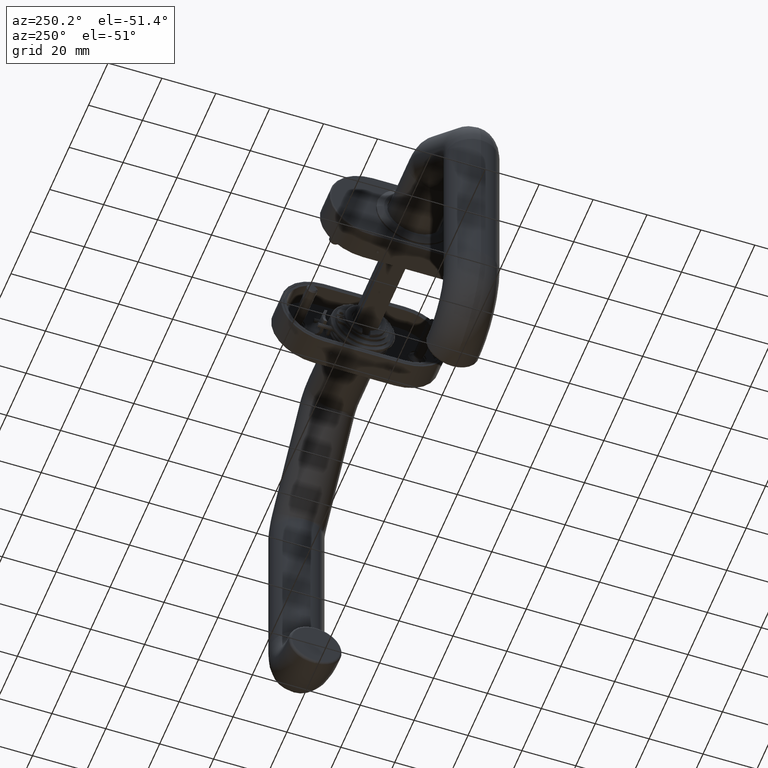
[diagram: clean part render]
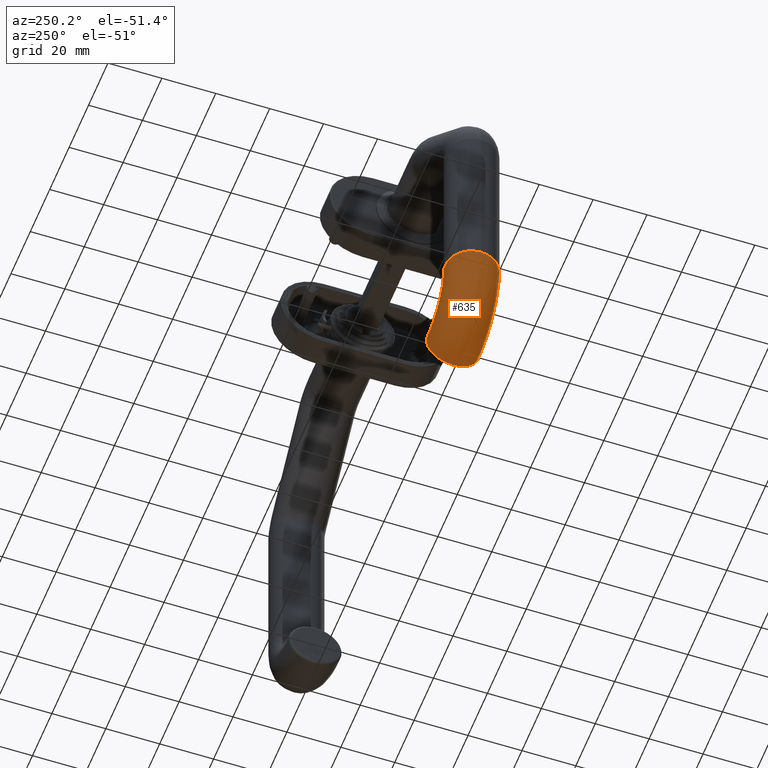
[diagram: same view with one face highlighted and labeled with its STEP entity id]
A machine part, auxiliary view. The second image highlights one B-rep face of the part: STEP entity #635.
In plain terms, the highlighted toroidal blend (fillet) surface has major radius 19.2 mm and minor (blend) radius 9.8 mm.
Its self-contained STEP definition (entity closure, byte-faithful):
#33 = CARTESIAN_POINT ( 'NONE',  ( -111.0000000000000142, 0.000000000000000000, -28.99999999999999289 ) ) ;
#635 = ADVANCED_FACE ( 'NONE', ( #16988, #4168 ), #20047, .T. ) ;
#1001 = CARTESIAN_POINT ( 'NONE',  ( -111.0000000000000142, 0.000000000000000000, 1.040834085586084257E-14 ) ) ;
#1347 = CIRCLE ( 'NONE', #4843, 9.800000000000002487 ) ;
#2150 = CARTESIAN_POINT ( 'NONE',  ( -111.0000000000000142, 0.000000000000000000, -9.799999999999993605 ) ) ;
#3275 = DIRECTION ( 'NONE',  ( -0.000000000000000000, -1.000000000000000000, 0.000000000000000000 ) ) ;
#4143 = DIRECTION ( 'NONE',  ( -5.721188726109845663E-18, 0.000000000000000000, -1.000000000000000000 ) ) ;
#4168 = FACE_OUTER_BOUND ( 'NONE', #7501, .T. ) ;
#4174 = EDGE_LOOP ( 'NONE', ( #10078 ) ) ;
#4843 = AXIS2_PLACEMENT_3D ( 'NONE', #13946, #4143, #15578 ) ;
#6930 = VERTEX_POINT ( 'NONE', #15783 ) ;
#7501 = EDGE_LOOP ( 'NONE', ( #17021 ) ) ;
#7730 = CIRCLE ( 'NONE', #10020, 9.800000000000002487 ) ;
#8460 = VERTEX_POINT ( 'NONE', #1001 ) ;
#8587 = DIRECTION ( 'NONE',  ( 0.000000000000000000, 0.000000000000000000, 1.000000000000000000 ) ) ;
#8699 = AXIS2_PLACEMENT_3D ( 'NONE', #33, #3275, #13108 ) ;
#10020 = AXIS2_PLACEMENT_3D ( 'NONE', #2150, #13519, #8587 ) ;
#10078 = ORIENTED_EDGE ( 'NONE', *, *, #10712, .T. ) ;
#10712 = EDGE_CURVE ( 'NONE', #8460, #8460, #7730, .T. ) ;
#10912 = EDGE_CURVE ( 'NONE', #6930, #6930, #1347, .T. ) ;
#13108 = DIRECTION ( 'NONE',  ( 0.000000000000000000, 0.000000000000000000, -1.000000000000000000 ) ) ;
#13519 = DIRECTION ( 'NONE',  ( -1.000000000000000000, 0.000000000000000000, -2.775557561562891351E-16 ) ) ;
#13946 = CARTESIAN_POINT ( 'NONE',  ( -130.1999999999999886, 0.000000000000000000, -28.99999999999998579 ) ) ;
#15578 = DIRECTION ( 'NONE',  ( -1.000000000000000000, 0.000000000000000000, 0.000000000000000000 ) ) ;
#15783 = CARTESIAN_POINT ( 'NONE',  ( -139.9999999999999716, 0.000000000000000000, -28.99999999999998579 ) ) ;
#16988 = FACE_OUTER_BOUND ( 'NONE', #4174, .T. ) ;
#17021 = ORIENTED_EDGE ( 'NONE', *, *, #10912, .F. ) ;
#20047 = TOROIDAL_SURFACE ( 'NONE', #8699, 19.20000000000000284, 9.800000000000002487 ) ;